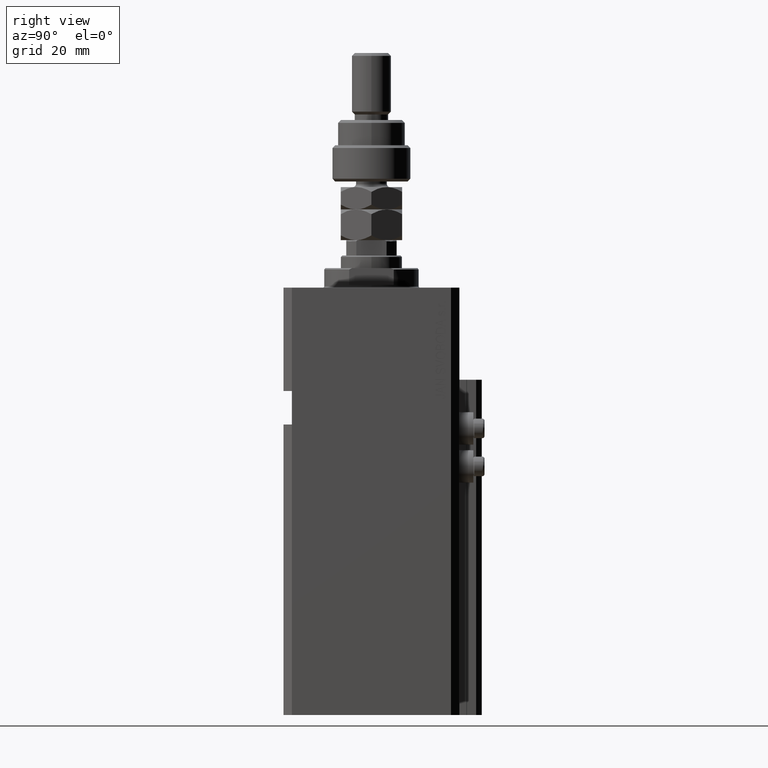
[diagram: clean part render]
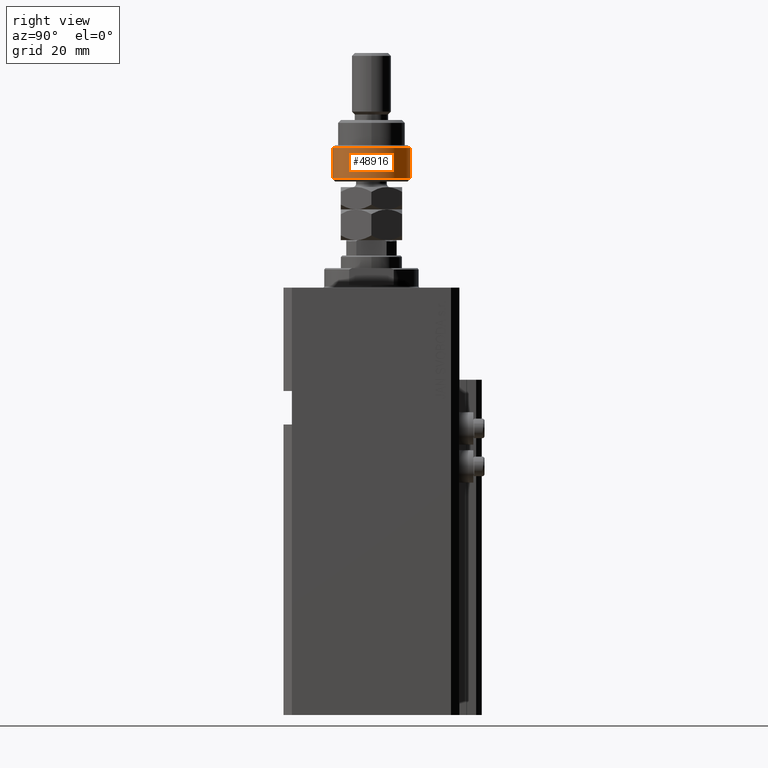
[diagram: same view with one face highlighted and labeled with its STEP entity id]
A machine part, right view. The second image highlights one B-rep face of the part: STEP entity #48916.
In plain terms, the highlighted cylindrical surface (partial cylindrical patch) has radius 14 mm, axis along (-0, -0, -1).
Its self-contained STEP definition (entity closure, byte-faithful):
#1458 = VERTEX_POINT ( 'NONE', #18599 ) ;
#2203 = CARTESIAN_POINT ( 'NONE',  ( -12.64911064067351809, 6.000000000000000000, 12.00000000000003553 ) ) ;
#2230 = VECTOR ( 'NONE', #28895, 1000.000000000000000 ) ;
#3429 = DIRECTION ( 'NONE',  ( -0.000000000000000000, -0.000000000000000000, 1.000000000000000000 ) ) ;
#3690 = EDGE_CURVE ( 'NONE', #27088, #6123, #18573, .T. ) ;
#5246 = ORIENTED_EDGE ( 'NONE', *, *, #3690, .T. ) ;
#6123 = VERTEX_POINT ( 'NONE', #28133 ) ;
#6125 = EDGE_CURVE ( 'NONE', #6123, #40002, #8556, .T. ) ;
#6517 = ORIENTED_EDGE ( 'NONE', *, *, #7240, .F. ) ;
#7240 = EDGE_CURVE ( 'NONE', #27088, #11262, #22869, .T. ) ;
#7393 = AXIS2_PLACEMENT_3D ( 'NONE', #28780, #13825, #9203 ) ;
#8556 = LINE ( 'NONE', #39975, #2230 ) ;
#9203 = DIRECTION ( 'NONE',  ( -1.000000000000000000, 0.000000000000000000, 0.000000000000000000 ) ) ;
#9707 = CYLINDRICAL_SURFACE ( 'NONE', #7393, 14.00000000000000000 ) ;
#11262 = VERTEX_POINT ( 'NONE', #37740 ) ;
#11282 = DIRECTION ( 'NONE',  ( -0.000000000000000000, -0.000000000000000000, -1.000000000000000000 ) ) ;
#13825 = DIRECTION ( 'NONE',  ( -0.000000000000000000, -0.000000000000000000, -1.000000000000000000 ) ) ;
#16431 = AXIS2_PLACEMENT_3D ( 'NONE', #23252, #3429, #34611 ) ;
#16861 = EDGE_LOOP ( 'NONE', ( #6517, #5246, #34144, #38732, #19752 ) ) ;
#18573 = CIRCLE ( 'NONE', #38347, 14.00000000000000000 ) ;
#18599 = CARTESIAN_POINT ( 'NONE',  ( 14.00000000000000000, 0.000000000000000000, 1.000000000000032196 ) ) ;
#19752 = ORIENTED_EDGE ( 'NONE', *, *, #37005, .T. ) ;
#20436 = DIRECTION ( 'NONE',  ( -0.000000000000000000, -0.000000000000000000, 1.000000000000000000 ) ) ;
#22869 = LINE ( 'NONE', #26994, #34341 ) ;
#23252 = CARTESIAN_POINT ( 'NONE',  ( 0.000000000000000000, 0.000000000000000000, 1.000000000000032196 ) ) ;
#24811 = CARTESIAN_POINT ( 'NONE',  ( 0.000000000000000000, 0.000000000000000000, 1.000000000000032196 ) ) ;
#26994 = CARTESIAN_POINT ( 'NONE',  ( -12.64911064067351809, 6.000000000000000000, 14.50000000000000000 ) ) ;
#27088 = VERTEX_POINT ( 'NONE', #2203 ) ;
#27147 = CIRCLE ( 'NONE', #16431, 14.00000000000000000 ) ;
#28133 = CARTESIAN_POINT ( 'NONE',  ( -12.64911064067351809, -5.999999999999999112, 12.00000000000003553 ) ) ;
#28444 = CIRCLE ( 'NONE', #45717, 14.00000000000000000 ) ;
#28780 = CARTESIAN_POINT ( 'NONE',  ( 0.000000000000000000, 0.000000000000000000, 13.00000000000000000 ) ) ;
#28895 = DIRECTION ( 'NONE',  ( -0.000000000000000000, -0.000000000000000000, -1.000000000000000000 ) ) ;
#32077 = DIRECTION ( 'NONE',  ( 1.000000000000000000, 0.000000000000000000, 0.000000000000000000 ) ) ;
#34144 = ORIENTED_EDGE ( 'NONE', *, *, #6125, .T. ) ;
#34341 = VECTOR ( 'NONE', #11282, 1000.000000000000000 ) ;
#34611 = DIRECTION ( 'NONE',  ( 1.000000000000000000, 0.000000000000000000, 0.000000000000000000 ) ) ;
#36455 = DIRECTION ( 'NONE',  ( 0.000000000000000000, 0.000000000000000000, -1.000000000000000000 ) ) ;
#37005 = EDGE_CURVE ( 'NONE', #1458, #11262, #28444, .T. ) ;
#37740 = CARTESIAN_POINT ( 'NONE',  ( -12.64911064067351809, 6.000000000000000000, 1.000000000000035527 ) ) ;
#38347 = AXIS2_PLACEMENT_3D ( 'NONE', #39545, #36455, #32077 ) ;
#38732 = ORIENTED_EDGE ( 'NONE', *, *, #45856, .T. ) ;
#39545 = CARTESIAN_POINT ( 'NONE',  ( 0.000000000000000000, 0.000000000000000000, 12.00000000000003553 ) ) ;
#39975 = CARTESIAN_POINT ( 'NONE',  ( -12.64911064067351809, -5.999999999999999112, 14.50000000000000000 ) ) ;
#40002 = VERTEX_POINT ( 'NONE', #46165 ) ;
#45717 = AXIS2_PLACEMENT_3D ( 'NONE', #24811, #20436, #47986 ) ;
#45856 = EDGE_CURVE ( 'NONE', #40002, #1458, #27147, .T. ) ;
#46165 = CARTESIAN_POINT ( 'NONE',  ( -12.64911064067351809, -5.999999999999999112, 1.000000000000035527 ) ) ;
#47986 = DIRECTION ( 'NONE',  ( 1.000000000000000000, 0.000000000000000000, 0.000000000000000000 ) ) ;
#48856 = FACE_OUTER_BOUND ( 'NONE', #16861, .T. ) ;
#48916 = ADVANCED_FACE ( 'NONE', ( #48856 ), #9707, .T. ) ;